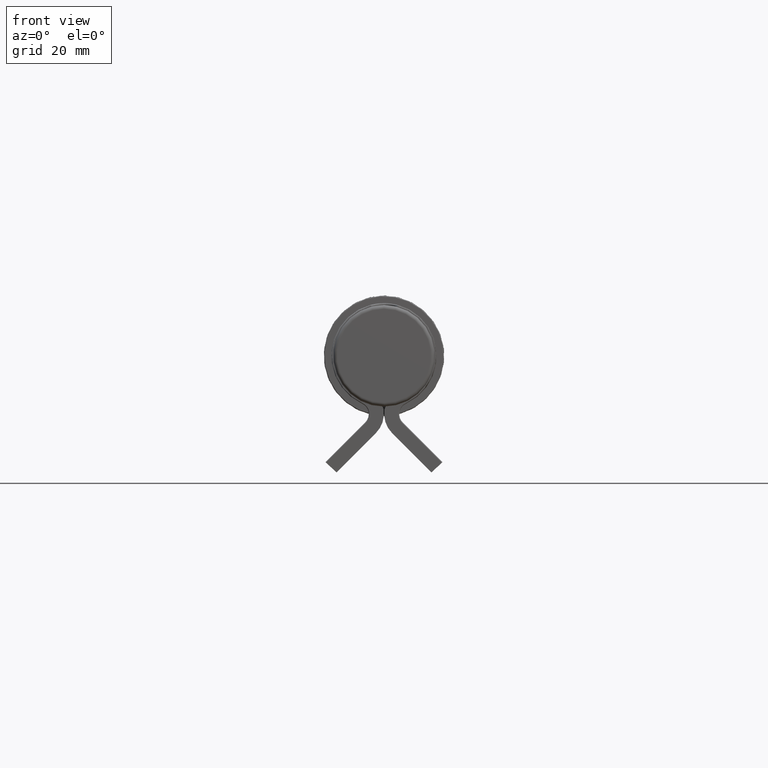
[diagram: clean part render]
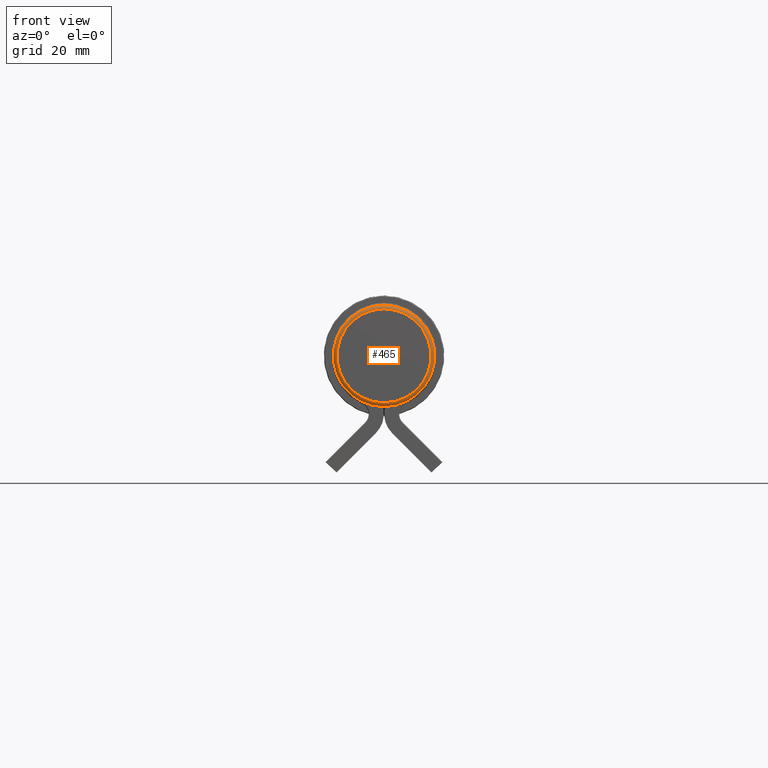
[diagram: same view with one face highlighted and labeled with its STEP entity id]
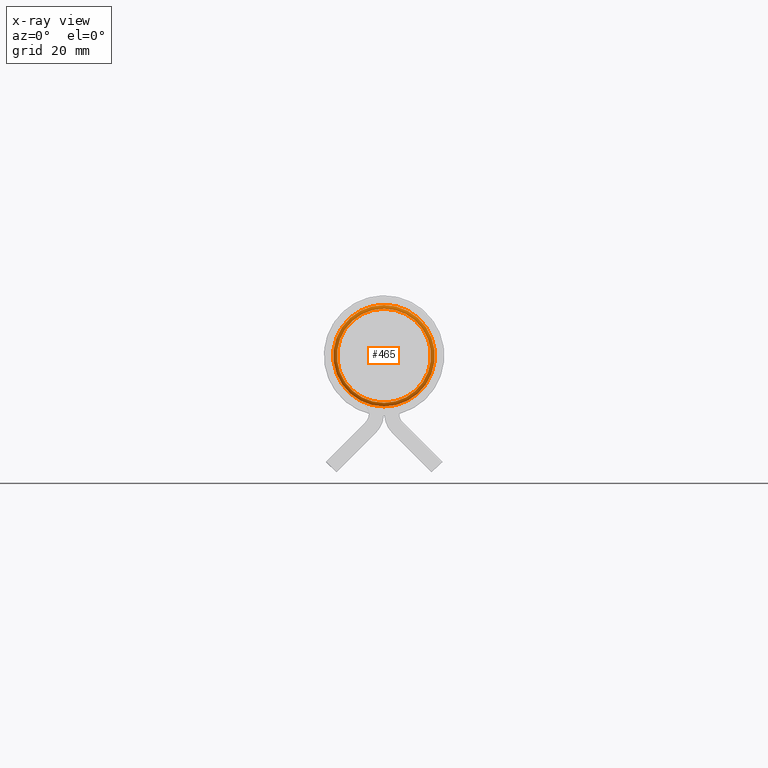
[diagram: x-ray of the same camera — body ghosted, the highlighted face saturated]
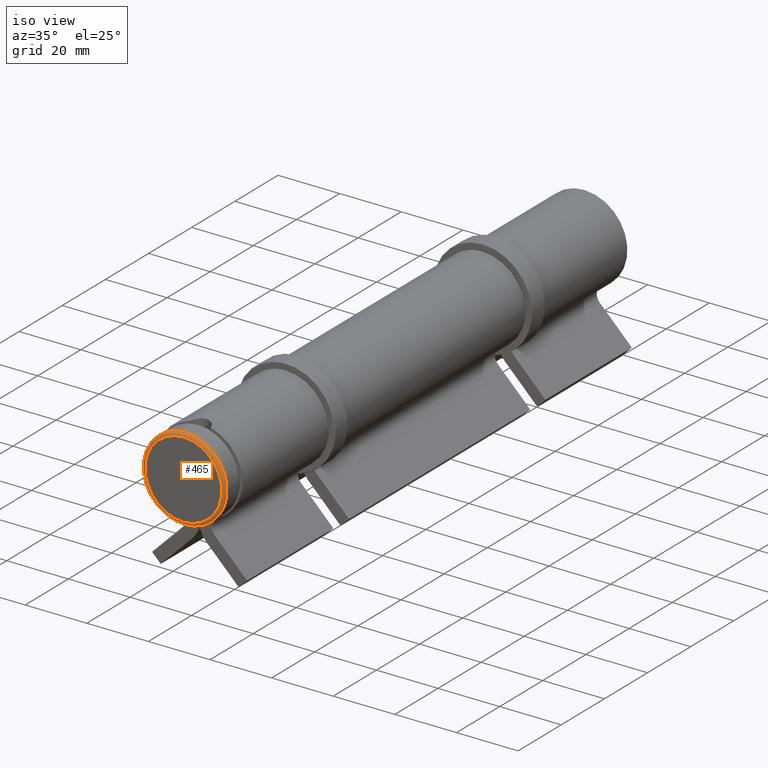
[diagram: same view with one face highlighted and labeled with its STEP entity id]
A machine part, front view. The second image highlights one B-rep face of the part: STEP entity #465.
The next image is the same camera in x-ray: the body ghosted, the highlighted face saturated — about 0% of this face is hidden behind the body in this view.
A second angle (iso view) of the same face is appended — the face is thin or edge-on in the first view.
In plain terms, the highlighted toroidal blend (fillet) surface has major radius 12.5 mm and minor (blend) radius 1 mm.
Its self-contained STEP definition (entity closure, byte-faithful):
#235 = ORIENTED_EDGE ( 'NONE', *, *, #365, .F. ) ;
#365 = EDGE_CURVE ( 'NONE', #3666, #3666, #3209, .T. ) ;
#465 = ADVANCED_FACE ( 'NONE', ( #855, #1527 ), #1968, .T. ) ;
#788 = CARTESIAN_POINT ( 'NONE',  ( 0.000000000000000000, 0.9999999999999965583, -13.49999999999999822 ) ) ;
#855 = FACE_OUTER_BOUND ( 'NONE', #2484, .T. ) ;
#942 = ORIENTED_EDGE ( 'NONE', *, *, #2014, .F. ) ;
#1339 = AXIS2_PLACEMENT_3D ( 'NONE', #3557, #2475, #1413 ) ;
#1413 = DIRECTION ( 'NONE',  ( 0.000000000000000000, 0.000000000000000000, -1.000000000000000000 ) ) ;
#1477 = DIRECTION ( 'NONE',  ( 0.000000000000000000, 0.000000000000000000, -1.000000000000000000 ) ) ;
#1527 = FACE_OUTER_BOUND ( 'NONE', #3207, .T. ) ;
#1607 = DIRECTION ( 'NONE',  ( 0.000000000000000000, 0.000000000000000000, -1.000000000000000000 ) ) ;
#1793 = CARTESIAN_POINT ( 'NONE',  ( 0.000000000000000000, -3.469446951953614189E-15, -12.49999999999999645 ) ) ;
#1968 = TOROIDAL_SURFACE ( 'NONE', #1339, 12.49999999999999645, 1.000000000000000000 ) ;
#2014 = EDGE_CURVE ( 'NONE', #3887, #3887, #2938, .T. ) ;
#2475 = DIRECTION ( 'NONE',  ( -0.000000000000000000, -1.000000000000000000, -0.000000000000000000 ) ) ;
#2484 = EDGE_LOOP ( 'NONE', ( #942 ) ) ;
#2844 = DIRECTION ( 'NONE',  ( -0.000000000000000000, -1.000000000000000000, -0.000000000000000000 ) ) ;
#2859 = AXIS2_PLACEMENT_3D ( 'NONE', #4203, #2844, #1477 ) ;
#2938 = CIRCLE ( 'NONE', #4058, 13.49999999999999822 ) ;
#3045 = DIRECTION ( 'NONE',  ( 0.000000000000000000, 1.000000000000000000, 0.000000000000000000 ) ) ;
#3207 = EDGE_LOOP ( 'NONE', ( #235 ) ) ;
#3209 = CIRCLE ( 'NONE', #2859, 12.49999999999999645 ) ;
#3557 = CARTESIAN_POINT ( 'NONE',  ( 0.000000000000000000, 0.9999999999999965583, 0.000000000000000000 ) ) ;
#3666 = VERTEX_POINT ( 'NONE', #1793 ) ;
#3887 = VERTEX_POINT ( 'NONE', #788 ) ;
#4058 = AXIS2_PLACEMENT_3D ( 'NONE', #4135, #3045, #1607 ) ;
#4135 = CARTESIAN_POINT ( 'NONE',  ( 0.000000000000000000, 0.9999999999999965583, 0.000000000000000000 ) ) ;
#4203 = CARTESIAN_POINT ( 'NONE',  ( 0.000000000000000000, -3.469446951953614189E-15, 0.000000000000000000 ) ) ;